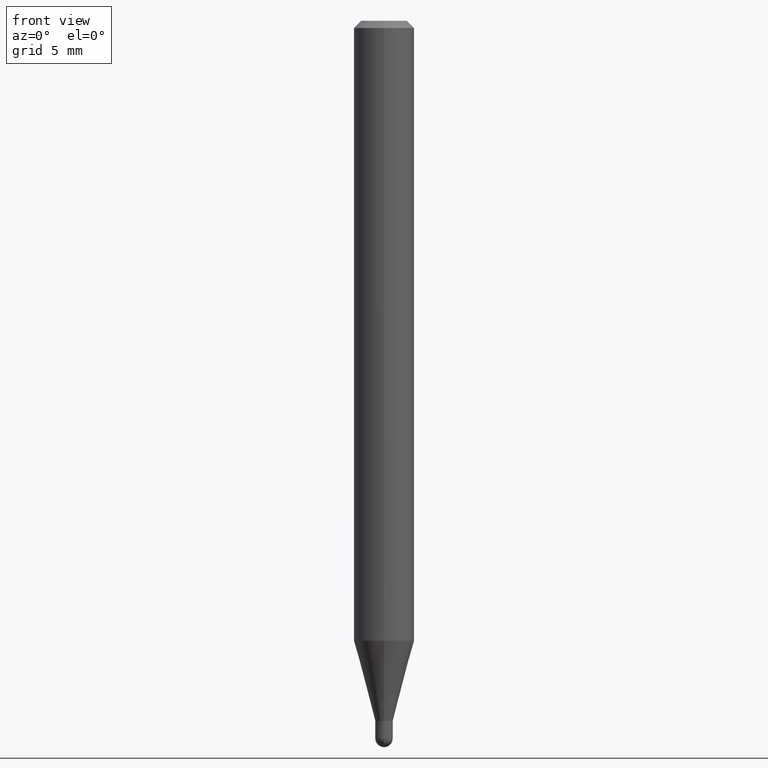
[diagram: clean part render]
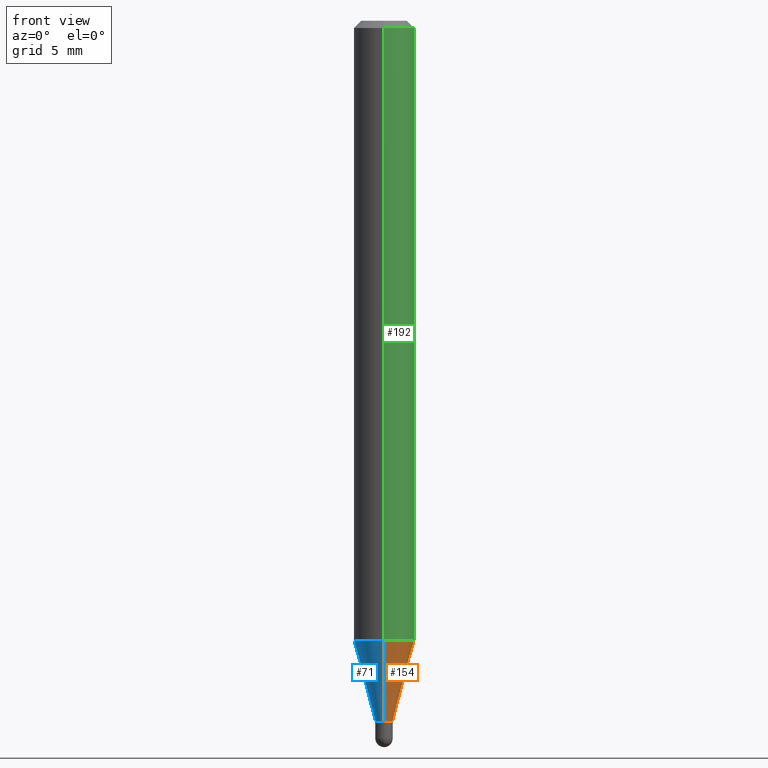
[diagram: same view with three faces highlighted in distinct colors, each labeled with its STEP entity id]
A machine part, front view with three faces highlighted in distinct colors.
Their STEP definitions:

[orange] entity #154 — the highlighted conical surface has half-angle 15 deg.
#7 = ORIENTED_EDGE ( 'NONE', *, *, #441, .F. ) ;
#14 = EDGE_CURVE ( 'NONE', #255, #416, #169, .T. ) ;
#32 = CONICAL_SURFACE ( 'NONE', #121, 0.01799999999999992231, 0.2617993877991576235 ) ;
#58 = CARTESIAN_POINT ( 'NONE',  ( -1.256933281983168751E-16, -0.01800000000000497383, -1.446000000000000396 ) ) ;
#72 = VECTOR ( 'NONE', #206, 39.37007874015748143 ) ;
#95 = DIRECTION ( 'NONE',  ( 1.839019923739650408E-15, 0.2588190451025320082, 0.9659258262890650926 ) ) ;
#106 = CIRCLE ( 'NONE', #389, 0.01799999999999992231 ) ;
#121 = AXIS2_PLACEMENT_3D ( 'NONE', #224, #146, #298 ) ;
#126 = DIRECTION ( 'NONE',  ( -6.982962677686265922E-15, -1.000000000000000000, 0.000000000000000000 ) ) ;
#146 = DIRECTION ( 'NONE',  ( -2.445478890525876859E-29, 3.491466897493240330E-15, 1.000000000000000000 ) ) ;
#154 = ADVANCED_FACE ( 'NONE', ( #199 ), #32, .T. ) ;
#167 = DIRECTION ( 'NONE',  ( -6.982962677686265922E-15, -1.000000000000000000, 4.370956789862821150E-15 ) ) ;
#169 = LINE ( 'NONE', #58, #72 ) ;
#199 = FACE_OUTER_BOUND ( 'NONE', #463, .T. ) ;
#206 = DIRECTION ( 'NONE',  ( -1.807323732225379838E-15, -0.2588190451025252914, 0.9659258262890670910 ) ) ;
#208 = CARTESIAN_POINT ( 'NONE',  ( 4.440892098500936776E-16, 0.06249999999999551747, -1.279923739063190791 ) ) ;
#217 = EDGE_CURVE ( 'NONE', #423, #294, #322, .T. ) ;
#224 = CARTESIAN_POINT ( 'NONE',  ( 3.536162475700418200E-29, -5.048661133775227252E-15, -1.446000000000000396 ) ) ;
#239 = CARTESIAN_POINT ( 'NONE',  ( 1.278976924368528323E-16, 0.01799999999999487427, -1.446000000000000396 ) ) ;
#246 = CARTESIAN_POINT ( 'NONE',  ( 3.536162475700418200E-29, -5.048661133775227252E-15, -1.446000000000000396 ) ) ;
#255 = VERTEX_POINT ( 'NONE', #273 ) ;
#273 = CARTESIAN_POINT ( 'NONE',  ( -1.256933281983168751E-16, -0.01800000000000497383, -1.446000000000000396 ) ) ;
#278 = VECTOR ( 'NONE', #95, 39.37007874015748854 ) ;
#294 = VERTEX_POINT ( 'NONE', #208 ) ;
#298 = DIRECTION ( 'NONE',  ( -6.982962677686265922E-15, -1.000000000000000000, 0.000000000000000000 ) ) ;
#322 = LINE ( 'NONE', #239, #278 ) ;
#328 = CIRCLE ( 'NONE', #508, 0.06250000000000000000 ) ;
#334 = ORIENTED_EDGE ( 'NONE', *, *, #14, .F. ) ;
#367 = CARTESIAN_POINT ( 'NONE',  ( 3.130026485361983037E-29, -4.468811366254904827E-15, -1.279923739063190569 ) ) ;
#373 = ORIENTED_EDGE ( 'NONE', *, *, #217, .T. ) ;
#389 = AXIS2_PLACEMENT_3D ( 'NONE', #246, #409, #126 ) ;
#405 = DIRECTION ( 'NONE',  ( -2.445478890525876859E-29, 3.491466897493240330E-15, 1.000000000000000000 ) ) ;
#409 = DIRECTION ( 'NONE',  ( -2.445478890525876859E-29, 3.491466897493240330E-15, 1.000000000000000000 ) ) ;
#416 = VERTEX_POINT ( 'NONE', #435 ) ;
#423 = VERTEX_POINT ( 'NONE', #472 ) ;
#435 = CARTESIAN_POINT ( 'NONE',  ( -4.364351673553604601E-16, -0.06250000000000448253, -1.279923739063190125 ) ) ;
#441 = EDGE_CURVE ( 'NONE', #416, #294, #328, .T. ) ;
#463 = EDGE_LOOP ( 'NONE', ( #468, #373, #7, #334 ) ) ;
#468 = ORIENTED_EDGE ( 'NONE', *, *, #486, .T. ) ;
#472 = CARTESIAN_POINT ( 'NONE',  ( 2.859934511434734645E-16, 0.01799999999999487427, -1.446000000000000396 ) ) ;
#486 = EDGE_CURVE ( 'NONE', #255, #423, #106, .T. ) ;
#508 = AXIS2_PLACEMENT_3D ( 'NONE', #367, #405, #167 ) ;

[blue] entity #71 — the highlighted conical surface has half-angle 15 deg.
#14 = EDGE_CURVE ( 'NONE', #255, #416, #169, .T. ) ;
#45 = AXIS2_PLACEMENT_3D ( 'NONE', #149, #305, #308 ) ;
#55 = DIRECTION ( 'NONE',  ( -6.982962677686265922E-15, -1.000000000000000000, 0.000000000000000000 ) ) ;
#58 = CARTESIAN_POINT ( 'NONE',  ( -1.256933281983168751E-16, -0.01800000000000497383, -1.446000000000000396 ) ) ;
#70 = CIRCLE ( 'NONE', #45, 0.01799999999999992231 ) ;
#71 = ADVANCED_FACE ( 'NONE', ( #244 ), #263, .T. ) ;
#72 = VECTOR ( 'NONE', #206, 39.37007874015748143 ) ;
#85 = ORIENTED_EDGE ( 'NONE', *, *, #422, .T. ) ;
#95 = DIRECTION ( 'NONE',  ( 1.839019923739650408E-15, 0.2588190451025320082, 0.9659258262890650926 ) ) ;
#100 = CIRCLE ( 'NONE', #447, 0.06250000000000000000 ) ;
#117 = ORIENTED_EDGE ( 'NONE', *, *, #341, .F. ) ;
#149 = CARTESIAN_POINT ( 'NONE',  ( 3.536162475700418200E-29, -5.048661133775227252E-15, -1.446000000000000396 ) ) ;
#169 = LINE ( 'NONE', #58, #72 ) ;
#177 = CARTESIAN_POINT ( 'NONE',  ( 3.130026485361983037E-29, -4.468811366254904827E-15, -1.279923739063190569 ) ) ;
#190 = ORIENTED_EDGE ( 'NONE', *, *, #217, .F. ) ;
#206 = DIRECTION ( 'NONE',  ( -1.807323732225379838E-15, -0.2588190451025252914, 0.9659258262890670910 ) ) ;
#208 = CARTESIAN_POINT ( 'NONE',  ( 4.440892098500936776E-16, 0.06249999999999551747, -1.279923739063190791 ) ) ;
#217 = EDGE_CURVE ( 'NONE', #423, #294, #322, .T. ) ;
#239 = CARTESIAN_POINT ( 'NONE',  ( 1.278976924368528323E-16, 0.01799999999999487427, -1.446000000000000396 ) ) ;
#244 = FACE_OUTER_BOUND ( 'NONE', #506, .T. ) ;
#255 = VERTEX_POINT ( 'NONE', #273 ) ;
#263 = CONICAL_SURFACE ( 'NONE', #331, 0.01799999999999992231, 0.2617993877991576235 ) ;
#273 = CARTESIAN_POINT ( 'NONE',  ( -1.256933281983168751E-16, -0.01800000000000497383, -1.446000000000000396 ) ) ;
#278 = VECTOR ( 'NONE', #95, 39.37007874015748854 ) ;
#294 = VERTEX_POINT ( 'NONE', #208 ) ;
#305 = DIRECTION ( 'NONE',  ( -2.445478890525876859E-29, 3.491466897493240330E-15, 1.000000000000000000 ) ) ;
#308 = DIRECTION ( 'NONE',  ( -6.982962677686265922E-15, -1.000000000000000000, 0.000000000000000000 ) ) ;
#322 = LINE ( 'NONE', #239, #278 ) ;
#330 = DIRECTION ( 'NONE',  ( -2.445478890525876859E-29, 3.491466897493240330E-15, 1.000000000000000000 ) ) ;
#331 = AXIS2_PLACEMENT_3D ( 'NONE', #408, #454, #55 ) ;
#341 = EDGE_CURVE ( 'NONE', #294, #416, #100, .T. ) ;
#408 = CARTESIAN_POINT ( 'NONE',  ( 3.536162475700418200E-29, -5.048661133775227252E-15, -1.446000000000000396 ) ) ;
#416 = VERTEX_POINT ( 'NONE', #435 ) ;
#422 = EDGE_CURVE ( 'NONE', #423, #255, #70, .T. ) ;
#423 = VERTEX_POINT ( 'NONE', #472 ) ;
#435 = CARTESIAN_POINT ( 'NONE',  ( -4.364351673553604601E-16, -0.06250000000000448253, -1.279923739063190125 ) ) ;
#447 = AXIS2_PLACEMENT_3D ( 'NONE', #177, #330, #502 ) ;
#454 = DIRECTION ( 'NONE',  ( -2.445478890525876859E-29, 3.491466897493240330E-15, 1.000000000000000000 ) ) ;
#472 = CARTESIAN_POINT ( 'NONE',  ( 2.859934511434734645E-16, 0.01799999999999487427, -1.446000000000000396 ) ) ;
#478 = ORIENTED_EDGE ( 'NONE', *, *, #14, .T. ) ;
#502 = DIRECTION ( 'NONE',  ( -6.982962677686265922E-15, -1.000000000000000000, 4.370956789862821150E-15 ) ) ;
#506 = EDGE_LOOP ( 'NONE', ( #190, #85, #478, #117 ) ) ;

[green] entity #192 — the highlighted cylindrical surface (edge-blend (fillet) strip) has radius 1.5875 mm, axis along (-0, 0, 1).
#13 = ORIENTED_EDGE ( 'NONE', *, *, #172, .F. ) ;
#36 = DIRECTION ( 'NONE',  ( -2.445478890525876859E-29, 3.491466897493240330E-15, 1.000000000000000000 ) ) ;
#63 = VERTEX_POINT ( 'NONE', #483 ) ;
#92 = CARTESIAN_POINT ( 'NONE',  ( 4.440892098500625669E-16, 0.06250000000000000000, -2.182166810933275206E-16 ) ) ;
#113 = CARTESIAN_POINT ( 'NONE',  ( 3.668218335788817846E-31, -5.237200346239863576E-17, -0.01500000000000000812 ) ) ;
#123 = ORIENTED_EDGE ( 'NONE', *, *, #299, .F. ) ;
#127 = DIRECTION ( 'NONE',  ( -2.445478890525876859E-29, 3.491466897493240330E-15, 1.000000000000000000 ) ) ;
#134 = EDGE_LOOP ( 'NONE', ( #426, #457, #13, #123 ) ) ;
#135 = AXIS2_PLACEMENT_3D ( 'NONE', #113, #36, #229 ) ;
#138 = VECTOR ( 'NONE', #357, 39.37007874015748143 ) ;
#142 = VECTOR ( 'NONE', #448, 39.37007874015748143 ) ;
#159 = DIRECTION ( 'NONE',  ( -6.982962677686265922E-15, -1.000000000000000000, 3.491466897493240330E-15 ) ) ;
#167 = DIRECTION ( 'NONE',  ( -6.982962677686265922E-15, -1.000000000000000000, 4.370956789862821150E-15 ) ) ;
#172 = EDGE_CURVE ( 'NONE', #297, #63, #381, .T. ) ;
#192 = ADVANCED_FACE ( 'NONE', ( #470 ), #433, .T. ) ;
#208 = CARTESIAN_POINT ( 'NONE',  ( 4.440892098500936776E-16, 0.06249999999999551747, -1.279923739063190791 ) ) ;
#210 = CARTESIAN_POINT ( 'NONE',  ( -4.364351673553916201E-16, -0.06250000000000000000, 2.182166810933275206E-16 ) ) ;
#212 = CARTESIAN_POINT ( 'NONE',  ( 0.000000000000000000, 0.000000000000000000, 0.000000000000000000 ) ) ;
#229 = DIRECTION ( 'NONE',  ( -6.982962677686265922E-15, -1.000000000000000000, 3.483106191921935554E-15 ) ) ;
#294 = VERTEX_POINT ( 'NONE', #208 ) ;
#297 = VERTEX_POINT ( 'NONE', #312 ) ;
#299 = EDGE_CURVE ( 'NONE', #416, #297, #397, .T. ) ;
#312 = CARTESIAN_POINT ( 'NONE',  ( -4.364351673553912750E-16, -0.06250000000000005551, -0.01499999999999979128 ) ) ;
#328 = CIRCLE ( 'NONE', #508, 0.06250000000000000000 ) ;
#357 = DIRECTION ( 'NONE',  ( -2.445478890525876859E-29, 3.491466897493240330E-15, 1.000000000000000000 ) ) ;
#367 = CARTESIAN_POINT ( 'NONE',  ( 3.130026485361983037E-29, -4.468811366254904827E-15, -1.279923739063190569 ) ) ;
#381 = CIRCLE ( 'NONE', #135, 0.06250000000000000000 ) ;
#397 = LINE ( 'NONE', #210, #138 ) ;
#405 = DIRECTION ( 'NONE',  ( -2.445478890525876859E-29, 3.491466897493240330E-15, 1.000000000000000000 ) ) ;
#416 = VERTEX_POINT ( 'NONE', #435 ) ;
#426 = ORIENTED_EDGE ( 'NONE', *, *, #441, .T. ) ;
#427 = AXIS2_PLACEMENT_3D ( 'NONE', #212, #127, #159 ) ;
#433 = CYLINDRICAL_SURFACE ( 'NONE', #427, 0.06250000000000000000 ) ;
#435 = CARTESIAN_POINT ( 'NONE',  ( -4.364351673553604601E-16, -0.06250000000000448253, -1.279923739063190125 ) ) ;
#441 = EDGE_CURVE ( 'NONE', #416, #294, #328, .T. ) ;
#448 = DIRECTION ( 'NONE',  ( -2.445478890525876859E-29, 3.491466897493240330E-15, 1.000000000000000000 ) ) ;
#457 = ORIENTED_EDGE ( 'NONE', *, *, #503, .T. ) ;
#470 = FACE_OUTER_BOUND ( 'NONE', #134, .T. ) ;
#483 = CARTESIAN_POINT ( 'NONE',  ( 4.440892098500940720E-16, 0.06249999999999995143, -0.01500000000000022669 ) ) ;
#484 = LINE ( 'NONE', #92, #142 ) ;
#503 = EDGE_CURVE ( 'NONE', #294, #63, #484, .T. ) ;
#508 = AXIS2_PLACEMENT_3D ( 'NONE', #367, #405, #167 ) ;